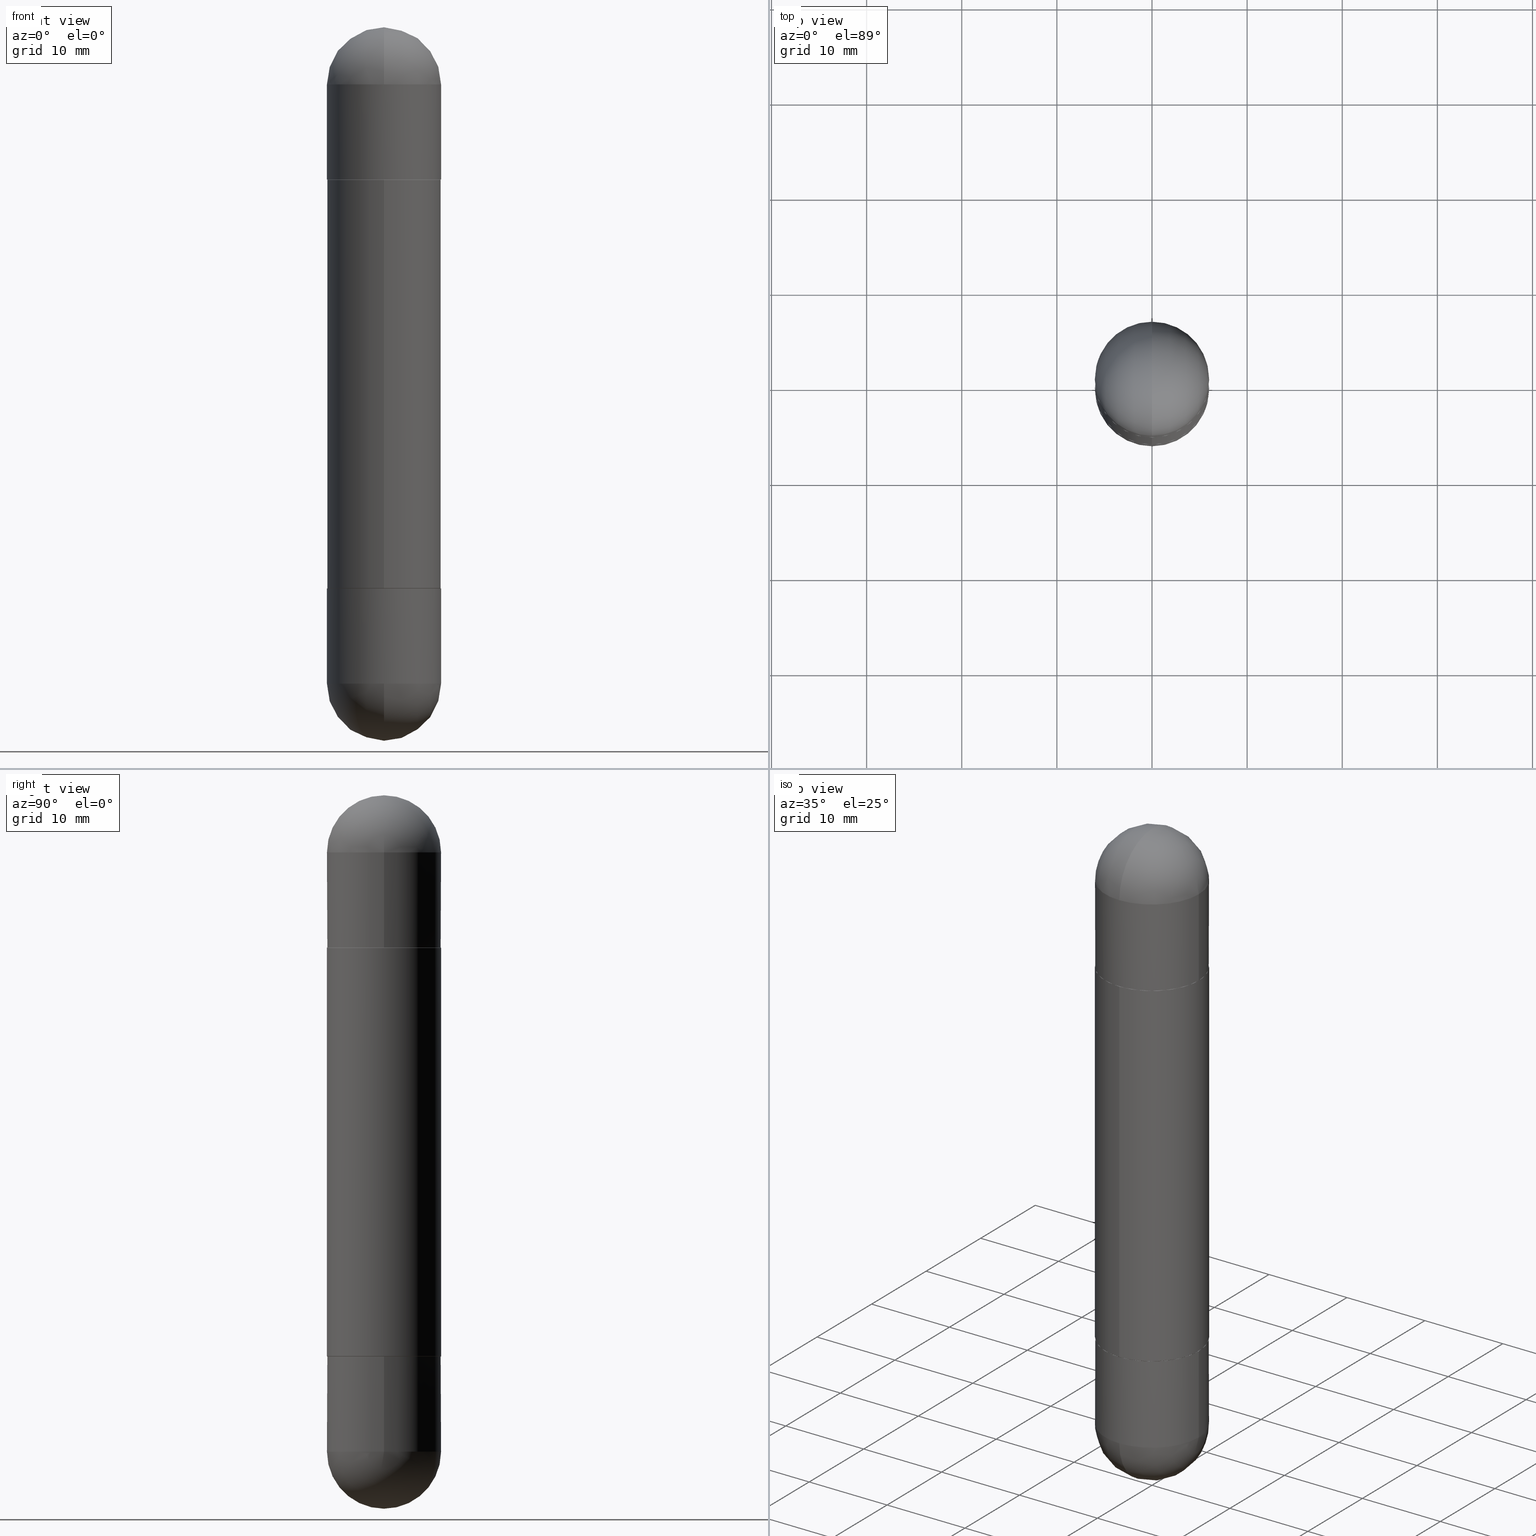
[diagram: canonical four-view strip — front | top / right | iso, engineering-drawing reading convention]
A machine part, canonical four-view strip (front | top / right | iso — engineering-drawing reading convention). The complete STEP part file that produces these views, byte-faithful:
ISO-10303-21;
HEADER;
FILE_DESCRIPTION (( 'STEP AP203' ),
    '1' );
FILE_NAME ('49088.STEP',
    '2024-03-01T12:51:57',
    ( '' ),
    ( '' ),
    'SwSTEP 2.0',
    'SolidWorks 2023',
    '' );
FILE_SCHEMA (( 'CONFIG_CONTROL_DESIGN' ));
ENDSEC;

DATA;
#1 = CIRCLE ( 'NONE', #321, 0.2361999999999999933 ) ;
#2 = CYLINDRICAL_SURFACE ( 'NONE', #669, 0.2362000000000001598 ) ;
#3 = AXIS2_PLACEMENT_3D ( 'NONE', #298, #245, #114 ) ;
#4 = EDGE_CURVE ( 'NONE', #277, #338, #294, .T. ) ;
#5 = DIRECTION ( 'NONE',  ( -2.445468806185136877E-29, 3.491481338843145188E-15, -1.000000000000000000 ) ) ;
#6 = ORIENTED_EDGE ( 'NONE', *, *, #646, .T. ) ;
#7 = CYLINDRICAL_SURFACE ( 'NONE', #602, 0.2361999999999999933 ) ;
#8 = DIRECTION ( 'NONE',  ( -1.000000000000000000, 6.982962677686265922E-15, 4.883557194083112340E-29 ) ) ;
#9 = ADVANCED_BREP_SHAPE_REPRESENTATION ( '49088', ( #317, #325, #604, #300, #579, #3 ), #652 ) ;
#10 = PERSON_AND_ORGANIZATION ( #197, #216 ) ;
#11 = CYLINDRICAL_SURFACE ( 'NONE', #145, 0.2362000000000001598 ) ;
#12 = CARTESIAN_POINT ( 'NONE',  ( 0.000000000000000000, 0.000000000000000000, -2.952799999999999869 ) ) ;
#13 = PRODUCT_RELATED_PRODUCT_CATEGORY ( 'detail', '', ( #59 ) ) ;
#14 = VECTOR ( 'NONE', #703, 39.37007874015748143 ) ;
#15 = DIRECTION ( 'NONE',  ( -1.000000000000000000, 7.105427357601001070E-15, -4.926315508542082329E-29 ) ) ;
#16 = AXIS2_PLACEMENT_3D ( 'NONE', #595, #664, #610 ) ;
#17 = ORIENTED_EDGE ( 'NONE', *, *, #635, .T. ) ;
#18 = DIRECTION ( 'NONE',  ( -6.982962677686265922E-15, -1.000000000000000000, 0.000000000000000000 ) ) ;
#19 = PLANE ( 'NONE',  #724 ) ;
#20 = LINE ( 'NONE', #278, #684 ) ;
#21 = EDGE_LOOP ( 'NONE', ( #658, #663 ) ) ;
#22 = ADVANCED_FACE ( 'NONE', ( #809 ), #772, .T. ) ;
#23 = VERTEX_POINT ( 'NONE', #396 ) ;
#24 = DIRECTION ( 'NONE',  ( -6.982962677686265922E-15, -1.000000000000000000, 3.469747663417773058E-15 ) ) ;
#25 = CARTESIAN_POINT ( 'NONE',  ( 5.680579489887452821E-29, -8.110362001998742346E-15, -0.6299000000000000155 ) ) ;
#26 = EDGE_CURVE ( 'NONE', #502, #424, #187, .T. ) ;
#27 = DIRECTION ( 'NONE',  ( -6.982962677686265922E-15, -1.000000000000000000, -3.469747663417773058E-15 ) ) ;
#28 = ORIENTED_EDGE ( 'NONE', *, *, #769, .T. ) ;
#29 = DIRECTION ( 'NONE',  ( -2.445468806185136877E-29, 3.491481338843145188E-15, 1.000000000000000000 ) ) ;
#30 = AXIS2_PLACEMENT_3D ( 'NONE', #612, #616, #789 ) ;
#31 = APPROVAL_PERSON_ORGANIZATION ( #765, #754, #331 ) ;
#32 = CARTESIAN_POINT ( 'NONE',  ( 5.678073753177936636E-29, -8.113950359584445403E-15, -2.322899999999999743 ) ) ;
#33 = CARTESIAN_POINT ( 'NONE',  ( 5.678073753177936636E-29, -8.113950359584445403E-15, -2.322899999999999743 ) ) ;
#34 = ORIENTED_EDGE ( 'NONE', *, *, #4, .T. ) ;
#35 = PLANE ( 'NONE',  #293 ) ;
#36 = EDGE_LOOP ( 'NONE', ( #810, #58 ) ) ;
#37 = SPHERICAL_SURFACE ( 'NONE', #226, 0.2362000000000002709 ) ;
#38 = EDGE_CURVE ( 'NONE', #273, #365, #706, .T. ) ;
#39 = FACE_OUTER_BOUND ( 'NONE', #778, .T. ) ;
#40 = CARTESIAN_POINT ( 'NONE',  ( 6.312240780968655053E-29, -9.959140573241337406E-15, -0.2362000000000000766 ) ) ;
#41 = CLOSED_SHELL ( 'NONE', ( #98, #555, #749, #717, #375, #589, #359, #308 ) ) ;
#42 = VECTOR ( 'NONE', #623, 39.37007874015748143 ) ;
#43 = CC_DESIGN_APPROVAL ( #754, ( #63 ) ) ;
#44 = EDGE_LOOP ( 'NONE', ( #540, #181, #342, #71, #452 ) ) ;
#45 = VERTEX_POINT ( 'NONE', #324 ) ;
#46 =( NAMED_UNIT ( * ) PLANE_ANGLE_UNIT ( ) SI_UNIT ( $, .RADIAN. ) );
#47 = DIRECTION ( 'NONE',  ( 1.000000000000000000, -6.982962677686265133E-15, 0.000000000000000000 ) ) ;
#48 = VERTEX_POINT ( 'NONE', #455 ) ;
#49 = VERTEX_POINT ( 'NONE', #136 ) ;
#50 = CARTESIAN_POINT ( 'NONE',  ( 6.312240780968655053E-29, -9.959140573241337406E-15, -0.2362000000000000766 ) ) ;
#51 = EDGE_CURVE ( 'NONE', #541, #225, #491, .T. ) ;
#52 = CARTESIAN_POINT ( 'NONE',  ( 1.620449627073636656E-15, 0.2362000000000001598, -2.952799999999998537 ) ) ;
#53 = ORIENTED_EDGE ( 'NONE', *, *, #771, .T. ) ;
#54 = ORIENTED_EDGE ( 'NONE', *, *, #383, .F. ) ;
#55 = ORIENTED_EDGE ( 'NONE', *, *, #113, .F. ) ;
#56 = DIRECTION ( 'NONE',  ( -6.982962677686265133E-15, -1.000000000000000000, -3.484499991918703113E-15 ) ) ;
#57 = CARTESIAN_POINT ( 'NONE',  ( -1.642392821791752924E-15, -0.2352000000000081248, -2.322899999999998855 ) ) ;
#58 = ORIENTED_EDGE ( 'NONE', *, *, #646, .F. ) ;
#59 = PRODUCT ( '49088', '49088', '', ( #556 ) ) ;
#60 = AXIS2_PLACEMENT_3D ( 'NONE', #792, #786, #156 ) ;
#61 = ORIENTED_EDGE ( 'NONE', *, *, #229, .T. ) ;
#62 = AXIS2_PLACEMENT_3D ( 'NONE', #355, #276, #791 ) ;
#63 = SECURITY_CLASSIFICATION ( '', '', #516 ) ;
#64 = PERSON_AND_ORGANIZATION ( #197, #216 ) ;
#65 = FACE_OUTER_BOUND ( 'NONE', #614, .T. ) ;
#66 = ORIENTED_EDGE ( 'NONE', *, *, #447, .F. ) ;
#67 = DIRECTION ( 'NONE',  ( -2.444390095646794193E-29, 3.493026113730442947E-15, -1.000000000000000000 ) ) ;
#68 = EDGE_CURVE ( 'NONE', #365, #690, #389, .T. ) ;
#69 = EDGE_CURVE ( 'NONE', #49, #23, #448, .T. ) ;
#70 = DIRECTION ( 'NONE',  ( -2.444390095646794193E-29, 3.493026113730442947E-15, -1.000000000000000000 ) ) ;
#71 = ORIENTED_EDGE ( 'NONE', *, *, #410, .F. ) ;
#72 = CARTESIAN_POINT ( 'NONE',  ( 5.675629363082290113E-29, -8.110457333470714388E-15, -0.6309000000000001274 ) ) ;
#73 = VECTOR ( 'NONE', #5, 39.37007874015748143 ) ;
#74 = CALENDAR_DATE ( 2024, 1, 3 ) ;
#75 = CIRCLE ( 'NONE', #88, 0.2361999999999999933 ) ;
#76 = CARTESIAN_POINT ( 'NONE',  ( 6.643360558882540179E-29, -9.484958205101285532E-15, -2.716599999999999238 ) ) ;
#77 = AXIS2_PLACEMENT_3D ( 'NONE', #539, #464, #335 ) ;
#78 = DIRECTION ( 'NONE',  ( -2.445468806185136597E-29, 3.491481338843145583E-15, -1.000000000000000000 ) ) ;
#79 = APPROVAL_DATE_TIME ( #133, #655 ) ;
#80 = CARTESIAN_POINT ( 'NONE',  ( 1.617019378074807352E-15, 0.2351999999999918600, -0.6298999999999992383 ) ) ;
#81 = DIRECTION ( 'NONE',  ( 2.444390095646794193E-29, -3.493026113730442947E-15, 1.000000000000000000 ) ) ;
#82 = PERSON_AND_ORGANIZATION_ROLE ( 'creator' ) ;
#83 = FACE_OUTER_BOUND ( 'NONE', #212, .T. ) ;
#84 = CARTESIAN_POINT ( 'NONE',  ( -1.678301941865292496E-15, -0.2362000000000098743, -2.716599999999997905 ) ) ;
#85 = AXIS2_PLACEMENT_3D ( 'NONE', #648, #81, #776 ) ;
#86 = CARTESIAN_POINT ( 'NONE',  ( 5.675629363082290113E-29, -8.110457333470714388E-15, -0.6309000000000001274 ) ) ;
#87 = EDGE_CURVE ( 'NONE', #682, #486, #362, .T. ) ;
#88 = AXIS2_PLACEMENT_3D ( 'NONE', #721, #346, #288 ) ;
#89 = APPROVAL_PERSON_ORGANIZATION ( #250, #691, #309 ) ;
#90 = CARTESIAN_POINT ( 'NONE',  ( 1.620449627073673141E-15, 0.2361999999999921385, -2.321900000000000297 ) ) ;
#91 = ORIENTED_EDGE ( 'NONE', *, *, #447, .T. ) ;
#92 = CARTESIAN_POINT ( 'NONE',  ( 1.613589129075920856E-15, 0.2351999999999918600, -0.6298999999999992383 ) ) ;
#93 = ORIENTED_EDGE ( 'NONE', *, *, #495, .F. ) ;
#94 = CARTESIAN_POINT ( 'NONE',  ( 1.649375784469552732E-15, 0.2361999999999918609, -2.322900000000000631 ) ) ;
#95 = EDGE_CURVE ( 'NONE', #513, #45, #544, .T. ) ;
#96 = CARTESIAN_POINT ( 'NONE',  ( 6.643360558882540179E-29, -9.484958205101285532E-15, -0.2362000000000006039 ) ) ;
#97 = SPHERICAL_SURFACE ( 'NONE', #492, 0.2362000000000002709 ) ;
#98 = ADVANCED_FACE ( 'NONE', ( #401 ), #571, .T. ) ;
#99 = CARTESIAN_POINT ( 'NONE',  ( -1.642392821791752924E-15, -0.2352000000000081248, -0.6299000000000007926 ) ) ;
#100 = AXIS2_PLACEMENT_3D ( 'NONE', #183, #303, #568 ) ;
#101 = ORIENTED_EDGE ( 'NONE', *, *, #398, .T. ) ;
#102 = FACE_OUTER_BOUND ( 'NONE', #521, .T. ) ;
#103 = FACE_OUTER_BOUND ( 'NONE', #112, .T. ) ;
#104 = CARTESIAN_POINT ( 'NONE',  ( 1.649375784469561606E-15, 0.2361999999999903899, -2.716600000000000126 ) ) ;
#105 = DIRECTION ( 'NONE',  ( -6.982962677686265133E-15, -1.000000000000000000, -3.484499991918703113E-15 ) ) ;
#106 = VERTEX_POINT ( 'NONE', #208 ) ;
#107 = AXIS2_PLACEMENT_3D ( 'NONE', #238, #501, #105 ) ;
#108 = AXIS2_PLACEMENT_3D ( 'NONE', #50, #482, #740 ) ;
#109 =( CONVERSION_BASED_UNIT ( 'INCH', #431 ) LENGTH_UNIT ( ) NAMED_UNIT ( #613 ) );
#110 = ORIENTED_EDGE ( 'NONE', *, *, #4, .F. ) ;
#111 = DIRECTION ( 'NONE',  ( -2.445468806185136597E-29, 3.491481338843145583E-15, 1.000000000000000000 ) ) ;
#112 = EDGE_LOOP ( 'NONE', ( #248, #241, #433, #527 ) ) ;
#113 = EDGE_CURVE ( 'NONE', #682, #45, #577, .T. ) ;
#114 = DIRECTION ( 'NONE',  ( 1.000000000000000000, 0.000000000000000000, 0.000000000000000000 ) ) ;
#115 = VERTEX_POINT ( 'NONE', #84 ) ;
#116 = CARTESIAN_POINT ( 'NONE',  ( -1.649375784469497117E-15, -0.2362000000000001598, -2.952800000000000757 ) ) ;
#117 = ORIENTED_EDGE ( 'NONE', *, *, #817, .T. ) ;
#118 = ORIENTED_EDGE ( 'NONE', *, *, #419, .F. ) ;
#119 = EDGE_CURVE ( 'NONE', #645, #48, #668, .T. ) ;
#120 =( LENGTH_UNIT ( ) NAMED_UNIT ( * ) SI_UNIT ( $, .METRE. ) );
#121 = DIRECTION ( 'NONE',  ( -2.444390095646793913E-29, 3.493026113730442947E-15, 1.000000000000000000 ) ) ;
#122 = CIRCLE ( 'NONE', #707, 0.2361999999999999933 ) ;
#123 = CIRCLE ( 'NONE', #634, 0.2351999999999999924 ) ;
#124 = CARTESIAN_POINT ( 'NONE',  ( 6.312240780968655053E-29, -9.959140573241337406E-15, -2.716599999999999682 ) ) ;
#125 = EDGE_CURVE ( 'NONE', #258, #260, #505, .T. ) ;
#126 = APPROVAL_DATE_TIME ( #700, #754 ) ;
#127 = CARTESIAN_POINT ( 'NONE',  ( 0.000000000000000000, 0.000000000000000000, 0.000000000000000000 ) ) ;
#128 = CARTESIAN_POINT ( 'NONE',  ( 5.678073753177936636E-29, -8.113950359584445403E-15, -2.322899999999999743 ) ) ;
#129 = CARTESIAN_POINT ( 'NONE',  ( 0.000000000000000000, 0.000000000000000000, -2.952799999999999869 ) ) ;
#130 = DIRECTION ( 'NONE',  ( -2.444390095646794193E-29, 3.493026113730442947E-15, -1.000000000000000000 ) ) ;
#131 = AXIS2_PLACEMENT_3D ( 'NONE', #388, #259, #194 ) ;
#132 = AXIS2_PLACEMENT_3D ( 'NONE', #127, #711, #142 ) ;
#133 = DATE_AND_TIME ( #74, #405 ) ;
#134 = AXIS2_PLACEMENT_3D ( 'NONE', #363, #121, #380 ) ;
#135 = DIRECTION ( 'NONE',  ( -6.982962677686265922E-15, -1.000000000000000000, -4.626330217890366181E-15 ) ) ;
#136 = CARTESIAN_POINT ( 'NONE',  ( 0.2361999999999999933, -1.044703588801951204E-14, -0.2362000000000006039 ) ) ;
#137 = ORIENTED_EDGE ( 'NONE', *, *, #38, .F. ) ;
#138 = DIRECTION ( 'NONE',  ( 1.000000000000000000, -6.982962677686265133E-15, 0.000000000000000000 ) ) ;
#139 = EDGE_LOOP ( 'NONE', ( #54, #161, #371, #148, #522 ) ) ;
#140 = DIRECTION ( 'NONE',  ( -6.982962677686265922E-15, -1.000000000000000000, -4.626330217890366181E-15 ) ) ;
#141 = ADVANCED_FACE ( 'NONE', ( #319 ), #515, .T. ) ;
#142 = DIRECTION ( 'NONE',  ( 1.000000000000000000, -6.982962677686266711E-15, 4.876176775795936353E-29 ) ) ;
#143 = DIRECTION ( 'NONE',  ( 1.000000000000000000, -6.982962677686265133E-15, 0.000000000000000000 ) ) ;
#144 = DIRECTION ( 'NONE',  ( 1.000000000000000000, -6.982962677686265922E-15, -4.883557194083112901E-29 ) ) ;
#145 = AXIS2_PLACEMENT_3D ( 'NONE', #818, #504, #570 ) ;
#146 = EDGE_CURVE ( 'NONE', #273, #645, #122, .T. ) ;
#147 = CIRCLE ( 'NONE', #547, 0.2361999999999999933 ) ;
#148 = ORIENTED_EDGE ( 'NONE', *, *, #69, .T. ) ;
#149 = FACE_OUTER_BOUND ( 'NONE', #21, .T. ) ;
#150 = DIRECTION ( 'NONE',  ( 2.445468806185136597E-29, -3.491481338843145583E-15, 1.000000000000000000 ) ) ;
#151 = VERTEX_POINT ( 'NONE', #90 ) ;
#152 = FACE_OUTER_BOUND ( 'NONE', #490, .T. ) ;
#153 = VERTEX_POINT ( 'NONE', #337 ) ;
#154 = CC_DESIGN_DATE_AND_TIME_ASSIGNMENT ( #182, #435, ( #368 ) ) ;
#155 = DIRECTION ( 'NONE',  ( 4.851104656541460468E-15, 0.7071067811866224018, -0.7071067811864726327 ) ) ;
#156 = DIRECTION ( 'NONE',  ( 1.000000000000000000, -6.982962677686265133E-15, 0.000000000000000000 ) ) ;
#157 = PLANE ( 'NONE',  #442 ) ;
#158 = DIRECTION ( 'NONE',  ( 1.000000000000000000, -6.982962677686265922E-15, -4.883557194083112901E-29 ) ) ;
#159 = CIRCLE ( 'NONE', #364, 0.2361999999999999933 ) ;
#160 = CC_DESIGN_DATE_AND_TIME_ASSIGNMENT ( #437, #326, ( #63 ) ) ;
#161 = ORIENTED_EDGE ( 'NONE', *, *, #742, .F. ) ;
#162 = EDGE_CURVE ( 'NONE', #106, #367, #20, .T. ) ;
#163 = DIRECTION ( 'NONE',  ( 6.982962677686265922E-15, 1.000000000000000000, 3.469747663417773058E-15 ) ) ;
#164 = CARTESIAN_POINT ( 'NONE',  ( 6.899960026864792464E-29, -1.076936538677815810E-14, -2.952799999999999869 ) ) ;
#165 = ADVANCED_FACE ( 'NONE', ( #638 ), #573, .F. ) ;
#166 = SPHERICAL_SURFACE ( 'NONE', #366, 0.2362000000000002709 ) ;
#167 = DIRECTION ( 'NONE',  ( -6.982962677686265133E-15, -1.000000000000000000, -3.484499991918703113E-15 ) ) ;
#168 = ORIENTED_EDGE ( 'NONE', *, *, #95, .F. ) ;
#169 = VERTEX_POINT ( 'NONE', #453 ) ;
#170 = ORIENTED_EDGE ( 'NONE', *, *, #449, .T. ) ;
#171 = DIRECTION ( 'NONE',  ( 1.000000000000000000, -6.982962677686265922E-15, 4.883557194083112340E-29 ) ) ;
#172 = ADVANCED_FACE ( 'NONE', ( #642 ), #726, .T. ) ;
#173 = ORIENTED_EDGE ( 'NONE', *, *, #189, .F. ) ;
#174 = AXIS2_PLACEMENT_3D ( 'NONE', #488, #558, #296 ) ;
#175 = ORIENTED_EDGE ( 'NONE', *, *, #209, .F. ) ;
#176 = CIRCLE ( 'NONE', #775, 0.2351999999999999924 ) ;
#177 = DIRECTION ( 'NONE',  ( 1.000000000000000000, -6.982962677686265922E-15, -4.883557194083112901E-29 ) ) ;
#178 = ORIENTED_EDGE ( 'NONE', *, *, #410, .T. ) ;
#179 = LINE ( 'NONE', #432, #750 ) ;
#180 = ADVANCED_FACE ( 'NONE', ( #149 ), #480, .F. ) ;
#181 = ORIENTED_EDGE ( 'NONE', *, *, #209, .T. ) ;
#182 = DATE_AND_TIME ( #546, #764 ) ;
#183 = CARTESIAN_POINT ( 'NONE',  ( 0.000000000000000000, 0.000000000000000000, -2.952799999999999869 ) ) ;
#184 = APPROVAL_STATUS ( 'not_yet_approved' ) ;
#185 = FACE_OUTER_BOUND ( 'NONE', #36, .T. ) ;
#186 = EDGE_CURVE ( 'NONE', #673, #23, #561, .T. ) ;
#187 = CIRCLE ( 'NONE', #320, 0.2362000000000002709 ) ;
#188 = AXIS2_PLACEMENT_3D ( 'NONE', #280, #218, #755 ) ;
#189 = EDGE_CURVE ( 'NONE', #629, #560, #783, .T. ) ;
#190 = COORDINATED_UNIVERSAL_TIME_OFFSET ( 5, 0, .BEHIND. ) ;
#191 = FACE_OUTER_BOUND ( 'NONE', #403, .T. ) ;
#192 = CARTESIAN_POINT ( 'NONE',  ( 0.000000000000000000, 0.000000000000000000, -2.952799999999999869 ) ) ;
#193 = FACE_OUTER_BOUND ( 'NONE', #739, .T. ) ;
#194 = DIRECTION ( 'NONE',  ( -1.000000000000000000, 0.000000000000000000, 0.000000000000000000 ) ) ;
#195 = EDGE_CURVE ( 'NONE', #151, #338, #748, .T. ) ;
#196 = ORIENTED_EDGE ( 'NONE', *, *, #564, .T. ) ;
#197 = PERSON ( 'UNSPECIFIED', 'UNSPECIFIED', 'UNSPECIFIED', ('UNSPECIFIED'), ('UNSPECIFIED'), ('UNSPECIFIED') ) ;
#198 = CARTESIAN_POINT ( 'NONE',  ( 1.620449627073694243E-15, 0.2361999999999921385, -0.6308999999999992392 ) ) ;
#199 = CARTESIAN_POINT ( 'NONE',  ( 5.680579489887452821E-29, -8.110362001998742346E-15, -0.6299000000000000155 ) ) ;
#200 = AXIS2_PLACEMENT_3D ( 'NONE', #458, #264, #640 ) ;
#201 = AXIS2_PLACEMENT_3D ( 'NONE', #671, #406, #420 ) ;
#202 = FACE_OUTER_BOUND ( 'NONE', #230, .T. ) ;
#203 = DIRECTION ( 'NONE',  ( 2.445468806185136597E-29, -3.491481338843145583E-15, 1.000000000000000000 ) ) ;
#204 = ADVANCED_FACE ( 'NONE', ( #341 ), #97, .T. ) ;
#205 = CARTESIAN_POINT ( 'NONE',  ( -1.649375784469497117E-15, -0.2362000000000001598, -2.952800000000000757 ) ) ;
#206 = EDGE_LOOP ( 'NONE', ( #628, #118 ) ) ;
#207 = EDGE_CURVE ( 'NONE', #513, #151, #474, .T. ) ;
#208 = CARTESIAN_POINT ( 'NONE',  ( -1.642392821791752924E-15, -0.2352000000000081248, -0.6299000000000007926 ) ) ;
#209 = EDGE_CURVE ( 'NONE', #260, #541, #542, .T. ) ;
#210 = CARTESIAN_POINT ( 'NONE',  ( 5.678073753177936636E-29, -8.113950359584445403E-15, -0.6299000000000000155 ) ) ;
#211 = DIRECTION ( 'NONE',  ( 6.982962677686265922E-15, 1.000000000000000000, -4.626330217890364603E-15 ) ) ;
#212 = EDGE_LOOP ( 'NONE', ( #306, #719, #800, #275, #297 ) ) ;
#213 = AXIS2_PLACEMENT_3D ( 'NONE', #581, #203, #461 ) ;
#214 = CARTESIAN_POINT ( 'NONE',  ( 1.649375784469552732E-15, 0.2361999999999918609, -0.6298999999999992383 ) ) ;
#215 = VECTOR ( 'NONE', #436, 39.37007874015748143 ) ;
#216 = ORGANIZATION ( 'UNSPECIFIED', 'UNSPECIFIED', '' ) ;
#217 = VERTEX_POINT ( 'NONE', #164 ) ;
#218 = DIRECTION ( 'NONE',  ( -0.000000000000000000, -0.000000000000000000, -1.000000000000000000 ) ) ;
#219 = SPHERICAL_SURFACE ( 'NONE', #62, 0.2362000000000002709 ) ;
#220 = CARTESIAN_POINT ( 'NONE',  ( 0.000000000000000000, 0.000000000000000000, -2.952799999999999869 ) ) ;
#221 = EDGE_LOOP ( 'NONE', ( #559, #28, #745, #110 ) ) ;
#222 = DIRECTION ( 'NONE',  ( -1.000000000000000000, 6.982962677686265922E-15, 4.876176775795935793E-29 ) ) ;
#223 = DIRECTION ( 'NONE',  ( -6.982962677686265133E-15, -1.000000000000000000, 3.484499991918703113E-15 ) ) ;
#224 = EDGE_CURVE ( 'NONE', #594, #169, #587, .T. ) ;
#225 = VERTEX_POINT ( 'NONE', #597 ) ;
#226 = AXIS2_PLACEMENT_3D ( 'NONE', #662, #286, #529 ) ;
#227 = CARTESIAN_POINT ( 'NONE',  ( 1.613589129075920856E-15, 0.2351999999999918600, -0.6298999999999992383 ) ) ;
#228 = AXIS2_PLACEMENT_3D ( 'NONE', #744, #372, #694 ) ;
#229 = EDGE_CURVE ( 'NONE', #567, #273, #414, .T. ) ;
#230 = EDGE_LOOP ( 'NONE', ( #481, #563, #91, #509 ) ) ;
#231 = CARTESIAN_POINT ( 'NONE',  ( 5.678073753177936636E-29, -8.113950359584445403E-15, -0.6299000000000000155 ) ) ;
#232 = FACE_OUTER_BOUND ( 'NONE', #44, .T. ) ;
#233 = EDGE_CURVE ( 'NONE', #236, #567, #630, .T. ) ;
#234 = FACE_OUTER_BOUND ( 'NONE', #549, .T. ) ;
#235 = CALENDAR_DATE ( 2024, 1, 3 ) ;
#236 = VERTEX_POINT ( 'NONE', #284 ) ;
#237 = ADVANCED_FACE ( 'NONE', ( #152 ), #676, .T. ) ;
#238 = CARTESIAN_POINT ( 'NONE',  ( 5.678073753177936636E-29, -8.113950359584445403E-15, -0.6299000000000000155 ) ) ;
#239 = AXIS2_PLACEMENT_3D ( 'NONE', #768, #394, #518 ) ;
#240 = CIRCLE ( 'NONE', #603, 0.2361999999999999933 ) ;
#241 = ORIENTED_EDGE ( 'NONE', *, *, #473, .T. ) ;
#242 = CC_DESIGN_SECURITY_CLASSIFICATION ( #63, ( #391 ) ) ;
#243 = CIRCLE ( 'NONE', #751, 0.2351999999999999924 ) ;
#244 = ORIENTED_EDGE ( 'NONE', *, *, #769, .F. ) ;
#245 = DIRECTION ( 'NONE',  ( 0.000000000000000000, 0.000000000000000000, 1.000000000000000000 ) ) ;
#246 = ORIENTED_EDGE ( 'NONE', *, *, #449, .F. ) ;
#247 = CARTESIAN_POINT ( 'NONE',  ( 6.643360558882540179E-29, -9.484958205101285532E-15, -2.716599999999999238 ) ) ;
#248 = ORIENTED_EDGE ( 'NONE', *, *, #233, .F. ) ;
#249 = ADVANCED_FACE ( 'NONE', ( #103 ), #37, .T. ) ;
#250 = PERSON_AND_ORGANIZATION ( #197, #216 ) ;
#251 = LINE ( 'NONE', #116, #42 ) ;
#252 = EDGE_CURVE ( 'NONE', #277, #153, #440, .T. ) ;
#253 = PERSON_AND_ORGANIZATION_ROLE ( 'design_supplier' ) ;
#254 = CARTESIAN_POINT ( 'NONE',  ( -0.2361999999999999933, -7.177210476476378861E-15, -0.2362000000000006039 ) ) ;
#255 = CIRCLE ( 'NONE', #228, 0.2361999999999999933 ) ;
#256 = AXIS2_PLACEMENT_3D ( 'NONE', #781, #144, #163 ) ;
#257 = FACE_OUTER_BOUND ( 'NONE', #347, .T. ) ;
#258 = VERTEX_POINT ( 'NONE', #104 ) ;
#259 = DIRECTION ( 'NONE',  ( 0.000000000000000000, 0.000000000000000000, 1.000000000000000000 ) ) ;
#260 = VERTEX_POINT ( 'NONE', #476 ) ;
#261 = LINE ( 'NONE', #327, #709 ) ;
#262 = ORIENTED_EDGE ( 'NONE', *, *, #146, .T. ) ;
#263 = CARTESIAN_POINT ( 'NONE',  ( -1.642392821791752924E-15, -0.2352000000000081248, -0.6299000000000007926 ) ) ;
#264 = DIRECTION ( 'NONE',  ( -1.000000000000000000, 6.982962677686265922E-15, 4.883557194083112340E-29 ) ) ;
#265 = EDGE_CURVE ( 'NONE', #460, #582, #75, .T. ) ;
#266 = DIRECTION ( 'NONE',  ( 1.000000000000000000, -6.982962677686266711E-15, 0.000000000000000000 ) ) ;
#267 = AXIS2_PLACEMENT_3D ( 'NONE', #40, #422, #413 ) ;
#268 = CIRCLE ( 'NONE', #16, 0.2361999999999999933 ) ;
#269 = COORDINATED_UNIVERSAL_TIME_OFFSET ( 5, 0, .BEHIND. ) ;
#270 = EDGE_CURVE ( 'NONE', #169, #594, #305, .T. ) ;
#271 = AXIS2_PLACEMENT_3D ( 'NONE', #606, #591, #720 ) ;
#272 = DIRECTION ( 'NONE',  ( 1.000000000000000000, -6.982962677686265133E-15, 0.000000000000000000 ) ) ;
#273 = VERTEX_POINT ( 'NONE', #552 ) ;
#274 = DIRECTION ( 'NONE',  ( -2.444390095646794193E-29, 3.493026113730442947E-15, 1.000000000000000000 ) ) ;
#275 = ORIENTED_EDGE ( 'NONE', *, *, #69, .F. ) ;
#276 = DIRECTION ( 'NONE',  ( -1.000000000000000000, 6.982962677686265922E-15, -4.883557194083112901E-29 ) ) ;
#277 = VERTEX_POINT ( 'NONE', #57 ) ;
#278 = CARTESIAN_POINT ( 'NONE',  ( -1.642392821791752924E-15, -0.2352000000000081248, -0.6299000000000007926 ) ) ;
#279 = DIRECTION ( 'NONE',  ( -6.982962677686265922E-15, -1.000000000000000000, -3.493026113730442947E-15 ) ) ;
#280 = CARTESIAN_POINT ( 'NONE',  ( 3.608897537212926545E-29, -5.157103754311625220E-15, -1.476399999999999935 ) ) ;
#281 = AXIS2_PLACEMENT_3D ( 'NONE', #220, #465, #353 ) ;
#282 = DIRECTION ( 'NONE',  ( -2.444390095646794193E-29, 3.493026113730442947E-15, 1.000000000000000000 ) ) ;
#283 = LOCAL_TIME ( 7, 51, 57.00000000000000000, #190 ) ;
#284 = CARTESIAN_POINT ( 'NONE',  ( 6.899960026864792464E-29, -1.076936538677815810E-14, 2.048885995248197414E-16 ) ) ;
#285 = FACE_OUTER_BOUND ( 'NONE', #803, .T. ) ;
#286 = DIRECTION ( 'NONE',  ( 1.000000000000000000, -6.982962677686265922E-15, -4.883557194083112901E-29 ) ) ;
#287 = FACE_OUTER_BOUND ( 'NONE', #554, .T. ) ;
#288 = DIRECTION ( 'NONE',  ( 1.000000000000000000, -6.982962677686265133E-15, 0.000000000000000000 ) ) ;
#289 = APPROVAL_ROLE ( '' ) ;
#290 = CLOSED_SHELL ( 'NONE', ( #438, #625, #237, #180, #593 ) ) ;
#291 = DIRECTION ( 'NONE',  ( -2.444390095646794193E-29, 3.493026113730442947E-15, 1.000000000000000000 ) ) ;
#292 = CIRCLE ( 'NONE', #761, 0.2361999999999999933 ) ;
#293 = AXIS2_PLACEMENT_3D ( 'NONE', #214, #536, #222 ) ;
#294 = LINE ( 'NONE', #674, #427 ) ;
#295 = EDGE_CURVE ( 'NONE', #225, #541, #255, .T. ) ;
#296 = DIRECTION ( 'NONE',  ( -6.982962677686265133E-15, -1.000000000000000000, 3.484499991918703113E-15 ) ) ;
#297 = ORIENTED_EDGE ( 'NONE', *, *, #445, .F. ) ;
#298 = CARTESIAN_POINT ( 'NONE',  ( 0.000000000000000000, 0.000000000000000000, 0.000000000000000000 ) ) ;
#299 = DIRECTION ( 'NONE',  ( 1.000000000000000000, -6.982962677686265133E-15, 0.000000000000000000 ) ) ;
#300 = MANIFOLD_SOLID_BREP ( 'Mirror4[4]', #334 ) ;
#301 = EDGE_LOOP ( 'NONE', ( #715, #683, #400, #101 ) ) ;
#302 = ORIENTED_EDGE ( 'NONE', *, *, #695, .F. ) ;
#303 = DIRECTION ( 'NONE',  ( -2.445468806185136597E-29, 3.491481338843145583E-15, -1.000000000000000000 ) ) ;
#304 = AXIS2_PLACEMENT_3D ( 'NONE', #25, #608, #408 ) ;
#305 = CIRCLE ( 'NONE', #188, 0.2362000000000001598 ) ;
#306 = ORIENTED_EDGE ( 'NONE', *, *, #265, .F. ) ;
#307 = AXIS2_PLACEMENT_3D ( 'NONE', #340, #534, #24 ) ;
#308 = ADVANCED_FACE ( 'NONE', ( #185 ), #548, .F. ) ;
#309 = APPROVAL_ROLE ( '' ) ;
#310 = CARTESIAN_POINT ( 'NONE',  ( 5.680579489887452821E-29, -8.110362001998742346E-15, -0.6299000000000000155 ) ) ;
#311 = EDGE_CURVE ( 'NONE', #486, #682, #651, .T. ) ;
#312 = ORIENTED_EDGE ( 'NONE', *, *, #113, .T. ) ;
#313 = CALENDAR_DATE ( 2024, 1, 3 ) ;
#314 = CYLINDRICAL_SURFACE ( 'NONE', #132, 0.2361999999999999933 ) ;
#315 = ORIENTED_EDGE ( 'NONE', *, *, #695, .T. ) ;
#316 = ORIENTED_EDGE ( 'NONE', *, *, #397, .F. ) ;
#317 = MANIFOLD_SOLID_BREP ( 'Body-Move/Copy2[1]', #290 ) ;
#318 = CARTESIAN_POINT ( 'NONE',  ( -1.620449627073571772E-15, -0.2362000000000098743, -0.2362000000000014366 ) ) ;
#319 = FACE_OUTER_BOUND ( 'NONE', #345, .T. ) ;
#320 = AXIS2_PLACEMENT_3D ( 'NONE', #386, #8, #18 ) ;
#321 = AXIS2_PLACEMENT_3D ( 'NONE', #76, #708, #272 ) ;
#322 = CIRCLE ( 'NONE', #108, 0.2362000000000002709 ) ;
#323 = DIRECTION ( 'NONE',  ( -2.444390095646793913E-29, 3.493026113730442947E-15, -1.000000000000000000 ) ) ;
#324 = CARTESIAN_POINT ( 'NONE',  ( -1.649375784469441108E-15, -0.2362000000000084032, -0.6309000000000009045 ) ) ;
#325 = MANIFOLD_SOLID_BREP ( 'Mirror4[1]', #796 ) ;
#326 = DATE_TIME_ROLE ( 'classification_date' ) ;
#327 = CARTESIAN_POINT ( 'NONE',  ( -0.2361999999999999933, 1.620449627073635670E-15, -2.952799999999999869 ) ) ;
#328 = UNCERTAINTY_MEASURE_WITH_UNIT (LENGTH_MEASURE( 1.000000000000000082E-05 ), #109, 'distance_accuracy_value', 'NONE');
#329 = DIRECTION ( 'NONE',  ( -6.982962677686265922E-15, -1.000000000000000000, -3.469747663417773058E-15 ) ) ;
#330 = ORIENTED_EDGE ( 'NONE', *, *, #654, .F. ) ;
#331 = APPROVAL_ROLE ( '' ) ;
#332 = CARTESIAN_POINT ( 'NONE',  ( 6.643360558882540179E-29, -9.484958205101285532E-15, -0.2362000000000006039 ) ) ;
#333 = DIRECTION ( 'NONE',  ( -2.445468806185136597E-29, 3.491481338843145583E-15, 1.000000000000000000 ) ) ;
#334 = CLOSED_SHELL ( 'NONE', ( #172, #680, #249, #762, #361 ) ) ;
#335 = DIRECTION ( 'NONE',  ( -6.982962677686265133E-15, -1.000000000000000000, -3.484499991918703113E-15 ) ) ;
#336 = ORIENTED_EDGE ( 'NONE', *, *, #357, .F. ) ;
#337 = CARTESIAN_POINT ( 'NONE',  ( 1.674749228186613674E-15, 0.2351999999999918600, -2.322900000000000631 ) ) ;
#338 = VERTEX_POINT ( 'NONE', #620 ) ;
#339 = ORIENTED_EDGE ( 'NONE', *, *, #146, .F. ) ;
#340 = CARTESIAN_POINT ( 'NONE',  ( 5.675629363082290113E-29, -8.110457333470714388E-15, -2.321899999999999409 ) ) ;
#341 = FACE_OUTER_BOUND ( 'NONE', #301, .T. ) ;
#342 = ORIENTED_EDGE ( 'NONE', *, *, #295, .F. ) ;
#343 = ADVANCED_FACE ( 'NONE', ( #234 ), #466, .T. ) ;
#344 = FACE_OUTER_BOUND ( 'NONE', #206, .T. ) ;
#345 = EDGE_LOOP ( 'NONE', ( #302, #735, #472, #66 ) ) ;
#346 = DIRECTION ( 'NONE',  ( 2.445468806185136597E-29, -3.491481338843145583E-15, 1.000000000000000000 ) ) ;
#347 = EDGE_LOOP ( 'NONE', ( #511, #688, #407, #598 ) ) ;
#348 = VECTOR ( 'NONE', #657, 39.37007874015748143 ) ;
#349 = CONICAL_SURFACE ( 'NONE', #532, 0.2351999999999999924, 0.7853981633975507526 ) ;
#350 = DIRECTION ( 'NONE',  ( 1.000000000000000000, -6.982962677686265133E-15, 0.000000000000000000 ) ) ;
#351 = VECTOR ( 'NONE', #155, 39.37007874015748143 ) ;
#352 = ORIENTED_EDGE ( 'NONE', *, *, #195, .F. ) ;
#353 = DIRECTION ( 'NONE',  ( 1.000000000000000000, -6.982962677686266711E-15, 0.000000000000000000 ) ) ;
#354 = EDGE_LOOP ( 'NONE', ( #244, #6, #34, #352 ) ) ;
#355 = CARTESIAN_POINT ( 'NONE',  ( 6.312240780968655053E-29, -9.959140573241337406E-15, -2.716599999999999682 ) ) ;
#356 = CARTESIAN_POINT ( 'NONE',  ( 6.312240780968655053E-29, -9.959140573241337406E-15, -2.716599999999999682 ) ) ;
#357 = EDGE_CURVE ( 'NONE', #412, #258, #240, .T. ) ;
#358 = DIRECTION ( 'NONE',  ( -1.000000000000000000, 6.982962677686265922E-15, -4.876176775795935793E-29 ) ) ;
#359 = ADVANCED_FACE ( 'NONE', ( #493 ), #723, .T. ) ;
#360 = ORIENTED_EDGE ( 'NONE', *, *, #643, .F. ) ;
#361 = ADVANCED_FACE ( 'NONE', ( #808 ), #499, .T. ) ;
#362 = CIRCLE ( 'NONE', #85, 0.2351999999999999924 ) ;
#363 = CARTESIAN_POINT ( 'NONE',  ( 5.678073753177936636E-29, -8.113950359584445403E-15, -2.322899999999999743 ) ) ;
#364 = AXIS2_PLACEMENT_3D ( 'NONE', #247, #111, #299 ) ;
#365 = VERTEX_POINT ( 'NONE', #699 ) ;
#366 = AXIS2_PLACEMENT_3D ( 'NONE', #815, #177, #807 ) ;
#367 = VERTEX_POINT ( 'NONE', #566 ) ;
#368 = PRODUCT_DEFINITION ( 'UNKNOWN', '', #391, #551 ) ;
#369 = CARTESIAN_POINT ( 'NONE',  ( 5.678073753177936636E-29, -8.113950359584445403E-15, -0.6299000000000000155 ) ) ;
#370 = DATE_AND_TIME ( #235, #417 ) ;
#371 = ORIENTED_EDGE ( 'NONE', *, *, #398, .F. ) ;
#372 = DIRECTION ( 'NONE',  ( -2.445468806185136597E-29, 3.491481338843145583E-15, 1.000000000000000000 ) ) ;
#373 = ORIENTED_EDGE ( 'NONE', *, *, #51, .F. ) ;
#374 = APPLICATION_CONTEXT ( 'configuration controlled 3d designs of mechanical parts and assemblies' ) ;
#375 = ADVANCED_FACE ( 'NONE', ( #65 ), #349, .T. ) ;
#376 = APPLICATION_PROTOCOL_DEFINITION ( 'international standard', 'config_control_design', 1994, #557 ) ;
#377 = DIRECTION ( 'NONE',  ( -2.444390095646794193E-29, 3.493026113730442947E-15, -1.000000000000000000 ) ) ;
#378 = AXIS2_PLACEMENT_3D ( 'NONE', #192, #78, #266 ) ;
#379 = AXIS2_PLACEMENT_3D ( 'NONE', #627, #679, #167 ) ;
#380 = DIRECTION ( 'NONE',  ( -6.982962677686265922E-15, -1.000000000000000000, 3.493026113730442947E-15 ) ) ;
#381 = ORIENTED_EDGE ( 'NONE', *, *, #265, .T. ) ;
#382 = DIRECTION ( 'NONE',  ( -4.937700262165053702E-15, -0.7071067811866175168, 0.7071067811864775177 ) ) ;
#383 = EDGE_CURVE ( 'NONE', #460, #673, #179, .T. ) ;
#384 = DIRECTION ( 'NONE',  ( 2.445468806185136597E-29, -3.491481338843145583E-15, 1.000000000000000000 ) ) ;
#385 = EDGE_CURVE ( 'NONE', #217, #258, #797, .T. ) ;
#386 = CARTESIAN_POINT ( 'NONE',  ( 6.312240780968655053E-29, -9.959140573241337406E-15, -0.2362000000000000766 ) ) ;
#387 = CYLINDRICAL_SURFACE ( 'NONE', #588, 0.2361999999999999933 ) ;
#388 = CARTESIAN_POINT ( 'NONE',  ( 0.000000000000000000, 0.000000000000000000, -1.476399999999999935 ) ) ;
#389 = CIRCLE ( 'NONE', #456, 0.2361999999999999933 ) ;
#390 = AXIS2_PLACEMENT_3D ( 'NONE', #767, #704, #135 ) ;
#391 = PRODUCT_DEFINITION_FORMATION_WITH_SPECIFIED_SOURCE ( 'ANY', '', #59, .NOT_KNOWN. ) ;
#392 = FACE_OUTER_BOUND ( 'NONE', #790, .T. ) ;
#393 = CC_DESIGN_PERSON_AND_ORGANIZATION_ASSIGNMENT ( #64, #498, ( #368 ) ) ;
#394 = DIRECTION ( 'NONE',  ( -2.445468806185136597E-29, 3.491481338843145583E-15, 1.000000000000000000 ) ) ;
#395 = LINE ( 'NONE', #205, #519 ) ;
#396 = CARTESIAN_POINT ( 'NONE',  ( 0.2361999999999999933, -9.759737786468237294E-15, -0.6299000000000000155 ) ) ;
#397 = EDGE_CURVE ( 'NONE', #260, #115, #159, .T. ) ;
#398 = EDGE_CURVE ( 'NONE', #49, #424, #292, .T. ) ;
#399 = CARTESIAN_POINT ( 'NONE',  ( 1.617019378074807352E-15, 0.2351999999999918600, -0.6298999999999992383 ) ) ;
#400 = ORIENTED_EDGE ( 'NONE', *, *, #445, .T. ) ;
#401 = FACE_OUTER_BOUND ( 'NONE', #221, .T. ) ;
#402 = AXIS2_PLACEMENT_3D ( 'NONE', #128, #274, #780 ) ;
#403 = EDGE_LOOP ( 'NONE', ( #117, #53 ) ) ;
#404 = VECTOR ( 'NONE', #67, 39.37007874015748143 ) ;
#405 = LOCAL_TIME ( 7, 51, 57.00000000000000000, #578 ) ;
#406 = DIRECTION ( 'NONE',  ( -2.444390095646794193E-29, 3.493026113730442947E-15, -1.000000000000000000 ) ) ;
#407 = ORIENTED_EDGE ( 'NONE', *, *, #421, .T. ) ;
#408 = DIRECTION ( 'NONE',  ( 1.000000000000000000, -6.982962677686265133E-15, 0.000000000000000000 ) ) ;
#409 = LINE ( 'NONE', #528, #457 ) ;
#410 = EDGE_CURVE ( 'NONE', #412, #225, #692, .T. ) ;
#411 = FACE_OUTER_BOUND ( 'NONE', #661, .T. ) ;
#412 = VERTEX_POINT ( 'NONE', #689 ) ;
#413 = DIRECTION ( 'NONE',  ( 6.860497997771530774E-15, 1.000000000000000000, 0.000000000000000000 ) ) ;
#414 = CIRCLE ( 'NONE', #60, 0.2361999999999999933 ) ;
#415 = AXIS2_PLACEMENT_3D ( 'NONE', #701, #15, #454 ) ;
#416 = DIRECTION ( 'NONE',  ( 2.438088387897960049E-29, -3.491481338843145188E-15, 1.000000000000000000 ) ) ;
#417 = LOCAL_TIME ( 7, 51, 57.00000000000000000, #631 ) ;
#418 = DIRECTION ( 'NONE',  ( -0.000000000000000000, -0.000000000000000000, -1.000000000000000000 ) ) ;
#419 = EDGE_CURVE ( 'NONE', #690, #365, #812, .T. ) ;
#420 = DIRECTION ( 'NONE',  ( -6.982962677686265133E-15, -1.000000000000000000, -3.484499991918703113E-15 ) ) ;
#421 = EDGE_CURVE ( 'NONE', #45, #338, #251, .T. ) ;
#422 = DIRECTION ( 'NONE',  ( 1.000000000000000000, -6.860497997771530774E-15, -4.840798879624142912E-29 ) ) ;
#423 = EDGE_CURVE ( 'NONE', #560, #594, #636, .T. ) ;
#424 = VERTEX_POINT ( 'NONE', #802 ) ;
#425 = CARTESIAN_POINT ( 'NONE',  ( 0.2361999999999999933, -1.649375784469496131E-15, 1.151752954443000088E-29 ) ) ;
#426 = APPROVAL_STATUS ( 'not_yet_approved' ) ;
#427 = VECTOR ( 'NONE', #382, 39.37007874015748143 ) ;
#428 = DIRECTION ( 'NONE',  ( 2.445468806185136597E-29, -3.491481338843145583E-15, 1.000000000000000000 ) ) ;
#429 = AXIS2_PLACEMENT_3D ( 'NONE', #124, #171, #633 ) ;
#430 = AXIS2_PLACEMENT_3D ( 'NONE', #725, #599, #660 ) ;
#431 = LENGTH_MEASURE_WITH_UNIT ( LENGTH_MEASURE( 0.02539999999999999897 ), #120 );
#432 = CARTESIAN_POINT ( 'NONE',  ( -0.2361999999999999933, 1.620449627073635670E-15, -2.952799999999999869 ) ) ;
#433 = ORIENTED_EDGE ( 'NONE', *, *, #119, .T. ) ;
#434 = ORIENTED_EDGE ( 'NONE', *, *, #793, .F. ) ;
#435 = DATE_TIME_ROLE ( 'creation_date' ) ;
#436 = DIRECTION ( 'NONE',  ( -2.445468806185136877E-29, 3.491481338843145188E-15, 1.000000000000000000 ) ) ;
#437 = DATE_AND_TIME ( #444, #283 ) ;
#438 = ADVANCED_FACE ( 'NONE', ( #232 ), #314, .T. ) ;
#439 = DIRECTION ( 'NONE',  ( 1.000000000000000000, -6.982962677686265133E-15, 0.000000000000000000 ) ) ;
#440 = CIRCLE ( 'NONE', #618, 0.2351999999999999924 ) ;
#441 = AXIS2_PLACEMENT_3D ( 'NONE', #332, #384, #138 ) ;
#442 = AXIS2_PLACEMENT_3D ( 'NONE', #210, #468, #279 ) ;
#443 = ORIENTED_EDGE ( 'NONE', *, *, #162, .T. ) ;
#444 = CALENDAR_DATE ( 2024, 1, 3 ) ;
#445 = EDGE_CURVE ( 'NONE', #582, #49, #506, .T. ) ;
#446 = CARTESIAN_POINT ( 'NONE',  ( 1.620449627073694243E-15, 0.2361999999999921385, -0.6308999999999992392 ) ) ;
#447 = EDGE_CURVE ( 'NONE', #367, #169, #395, .T. ) ;
#448 = LINE ( 'NONE', #592, #641 ) ;
#449 = EDGE_CURVE ( 'NONE', #48, #690, #261, .T. ) ;
#450 = PERSON_AND_ORGANIZATION ( #197, #216 ) ;
#451 = CARTESIAN_POINT ( 'NONE',  ( 0.000000000000000000, 0.000000000000000000, 0.000000000000000000 ) ) ;
#452 = ORIENTED_EDGE ( 'NONE', *, *, #357, .T. ) ;
#453 = CARTESIAN_POINT ( 'NONE',  ( -1.649375784469450574E-15, -0.2362000000000053224, -1.476399999999999935 ) ) ;
#454 = DIRECTION ( 'NONE',  ( -7.105427357601001070E-15, -1.000000000000000000, 0.000000000000000000 ) ) ;
#455 = CARTESIAN_POINT ( 'NONE',  ( -0.2361999999999999933, -7.177210476476378861E-15, -0.2362000000000006039 ) ) ;
#456 = AXIS2_PLACEMENT_3D ( 'NONE', #199, #586, #523 ) ;
#457 = VECTOR ( 'NONE', #787, 39.37007874015748143 ) ;
#458 = CARTESIAN_POINT ( 'NONE',  ( 6.312240780968655053E-29, -9.959140573241337406E-15, -0.2362000000000000766 ) ) ;
#459 = CC_DESIGN_PERSON_AND_ORGANIZATION_ASSIGNMENT ( #450, #253, ( #391 ) ) ;
#460 = VERTEX_POINT ( 'NONE', #254 ) ;
#461 = DIRECTION ( 'NONE',  ( 1.000000000000000000, -6.982962677686265133E-15, 0.000000000000000000 ) ) ;
#462 = CARTESIAN_POINT ( 'NONE',  ( -0.2361999999999999933, -7.119358161684655967E-15, -2.322899999999999743 ) ) ;
#463 = CARTESIAN_POINT ( 'NONE',  ( 6.643360558882540179E-29, -9.484958205101285532E-15, -0.2362000000000006039 ) ) ;
#464 = DIRECTION ( 'NONE',  ( -2.444390095646794193E-29, 3.493026113730442947E-15, -1.000000000000000000 ) ) ;
#465 = DIRECTION ( 'NONE',  ( -2.445468806185136597E-29, 3.491481338843145583E-15, -1.000000000000000000 ) ) ;
#466 = CONICAL_SURFACE ( 'NONE', #107, 0.2351999999999999924, 0.7853981633975507526 ) ;
#467 = CIRCLE ( 'NONE', #799, 0.2362000000000002709 ) ;
#468 = DIRECTION ( 'NONE',  ( -2.444390095646793913E-29, 3.493026113730442947E-15, -1.000000000000000000 ) ) ;
#469 = DIRECTION ( 'NONE',  ( -1.000000000000000000, 0.000000000000000000, 0.000000000000000000 ) ) ;
#470 = ORIENTED_EDGE ( 'NONE', *, *, #421, .F. ) ;
#471 = CARTESIAN_POINT ( 'NONE',  ( -0.2361999999999999933, -7.177210476476377283E-15, -0.6299000000000000155 ) ) ;
#472 = ORIENTED_EDGE ( 'NONE', *, *, #270, .F. ) ;
#473 = EDGE_CURVE ( 'NONE', #236, #645, #565, .T. ) ;
#474 = LINE ( 'NONE', #730, #348 ) ;
#475 = CARTESIAN_POINT ( 'NONE',  ( 1.649375784469561606E-15, 0.2361999999999903899, -0.2361999999999997990 ) ) ;
#476 = CARTESIAN_POINT ( 'NONE',  ( -0.2361999999999999933, -7.119358161684659123E-15, -2.716599999999999238 ) ) ;
#477 = AXIS2_PLACEMENT_3D ( 'NONE', #94, #600, #358 ) ;
#478 = ORIENTED_EDGE ( 'NONE', *, *, #87, .F. ) ;
#479 = CARTESIAN_POINT ( 'NONE',  ( 1.649375784469552732E-15, 0.2361999999999918609, -0.6298999999999992383 ) ) ;
#480 = PLANE ( 'NONE',  #477 ) ;
#481 = ORIENTED_EDGE ( 'NONE', *, *, #423, .F. ) ;
#482 = DIRECTION ( 'NONE',  ( 1.000000000000000000, -6.860497997771530774E-15, -4.840798879624142912E-29 ) ) ;
#483 = DIRECTION ( 'NONE',  ( 1.000000000000000000, -6.982962677686265133E-15, 0.000000000000000000 ) ) ;
#484 = ORIENTED_EDGE ( 'NONE', *, *, #817, .F. ) ;
#485 = ORIENTED_EDGE ( 'NONE', *, *, #162, .F. ) ;
#486 = VERTEX_POINT ( 'NONE', #399 ) ;
#487 = APPLICATION_PROTOCOL_DEFINITION ( 'international standard', 'config_control_design', 1994, #374 ) ;
#488 = CARTESIAN_POINT ( 'NONE',  ( 5.678073753177936636E-29, -8.113950359584445403E-15, -2.322899999999999743 ) ) ;
#489 = ORIENTED_EDGE ( 'NONE', *, *, #419, .T. ) ;
#490 = EDGE_LOOP ( 'NONE', ( #731, #572, #336, #93 ) ) ;
#491 = CIRCLE ( 'NONE', #239, 0.2361999999999999933 ) ;
#492 = AXIS2_PLACEMENT_3D ( 'NONE', #733, #158, #537 ) ;
#493 = FACE_OUTER_BOUND ( 'NONE', #354, .T. ) ;
#494 = AXIS2_PLACEMENT_3D ( 'NONE', #86, #656, #27 ) ;
#495 = EDGE_CURVE ( 'NONE', #115, #412, #1, .T. ) ;
#496 = LOCAL_TIME ( 7, 51, 57.00000000000000000, #269 ) ;
#497 = ORIENTED_EDGE ( 'NONE', *, *, #189, .T. ) ;
#498 = PERSON_AND_ORGANIZATION_ROLE ( 'creator' ) ;
#499 = CYLINDRICAL_SURFACE ( 'NONE', #100, 0.2361999999999999933 ) ;
#500 = PERSON_AND_ORGANIZATION ( #197, #216 ) ;
#501 = DIRECTION ( 'NONE',  ( -2.444390095646794193E-29, 3.493026113730442947E-15, -1.000000000000000000 ) ) ;
#502 = VERTEX_POINT ( 'NONE', #510 ) ;
#503 = PERSON_AND_ORGANIZATION_ROLE ( 'classification_officer' ) ;
#504 = DIRECTION ( 'NONE',  ( -2.444390095646794193E-29, 3.493026113730442947E-15, -1.000000000000000000 ) ) ;
#505 = CIRCLE ( 'NONE', #617, 0.2361999999999999933 ) ;
#506 = CIRCLE ( 'NONE', #441, 0.2361999999999999933 ) ;
#507 = CC_DESIGN_PERSON_AND_ORGANIZATION_ASSIGNMENT ( #10, #82, ( #391 ) ) ;
#508 = CONICAL_SURFACE ( 'NONE', #201, 0.2351999999999999924, 0.7853981633975507526 ) ;
#509 = ORIENTED_EDGE ( 'NONE', *, *, #224, .F. ) ;
#510 = CARTESIAN_POINT ( 'NONE',  ( 6.899960026864792464E-29, -1.076936538677815810E-14, 2.048885995248197414E-16 ) ) ;
#511 = ORIENTED_EDGE ( 'NONE', *, *, #207, .F. ) ;
#512 = CARTESIAN_POINT ( 'NONE',  ( 0.2361999999999999933, -1.649375784469496131E-15, -2.952799999999999869 ) ) ;
#513 = VERTEX_POINT ( 'NONE', #198 ) ;
#514 = DIRECTION ( 'NONE',  ( -2.445468806185136597E-29, 3.491481338843145583E-15, -1.000000000000000000 ) ) ;
#515 = CYLINDRICAL_SURFACE ( 'NONE', #531, 0.2362000000000001598 ) ;
#516 = SECURITY_CLASSIFICATION_LEVEL ( 'unclassified' ) ;
#517 = DIRECTION ( 'NONE',  ( -2.445468806185136597E-29, 3.491481338843145583E-15, 1.000000000000000000 ) ) ;
#518 = DIRECTION ( 'NONE',  ( 1.000000000000000000, -6.982962677686265133E-15, 0.000000000000000000 ) ) ;
#519 = VECTOR ( 'NONE', #584, 39.37007874015748143 ) ;
#520 = CYLINDRICAL_SURFACE ( 'NONE', #390, 0.2362000000000001598 ) ;
#521 = EDGE_LOOP ( 'NONE', ( #756, #609 ) ) ;
#522 = ORIENTED_EDGE ( 'NONE', *, *, #643, .T. ) ;
#523 = DIRECTION ( 'NONE',  ( 1.000000000000000000, -6.982962677686265133E-15, 0.000000000000000000 ) ) ;
#524 = LINE ( 'NONE', #92, #351 ) ;
#525 = DIRECTION ( 'NONE',  ( -4.937700262165053702E-15, -0.7071067811866175168, -0.7071067811864775177 ) ) ;
#526 = ORIENTED_EDGE ( 'NONE', *, *, #771, .F. ) ;
#527 = ORIENTED_EDGE ( 'NONE', *, *, #759, .T. ) ;
#528 = CARTESIAN_POINT ( 'NONE',  ( 1.671196514507812184E-15, 0.2351999999999918600, -2.322900000000000631 ) ) ;
#529 = DIRECTION ( 'NONE',  ( 6.982962677686265922E-15, 1.000000000000000000, 3.469747663417773058E-15 ) ) ;
#530 = ADVANCED_FACE ( 'NONE', ( #202 ), #11, .T. ) ;
#531 = AXIS2_PLACEMENT_3D ( 'NONE', #12, #130, #140 ) ;
#532 = AXIS2_PLACEMENT_3D ( 'NONE', #369, #377, #752 ) ;
#533 = CIRCLE ( 'NONE', #430, 0.2362000000000002709 ) ;
#534 = DIRECTION ( 'NONE',  ( -2.444390095646794193E-29, 3.493026113730442947E-15, 1.000000000000000000 ) ) ;
#535 = DIRECTION ( 'NONE',  ( 4.851104656541460468E-15, 0.7071067811866224018, -0.7071067811864726327 ) ) ;
#536 = DIRECTION ( 'NONE',  ( 2.438088387897960049E-29, -3.491481338843145188E-15, 1.000000000000000000 ) ) ;
#537 = DIRECTION ( 'NONE',  ( 6.982962677686265922E-15, 1.000000000000000000, 3.469747663417773058E-15 ) ) ;
#538 = ADVANCED_FACE ( 'NONE', ( #191 ), #637, .F. ) ;
#539 = CARTESIAN_POINT ( 'NONE',  ( 5.678073753177936636E-29, -8.113950359584445403E-15, -0.6299000000000000155 ) ) ;
#540 = ORIENTED_EDGE ( 'NONE', *, *, #125, .T. ) ;
#541 = VERTEX_POINT ( 'NONE', #462 ) ;
#542 = LINE ( 'NONE', #738, #811 ) ;
#543 = ORIENTED_EDGE ( 'NONE', *, *, #654, .T. ) ;
#544 = CIRCLE ( 'NONE', #601, 0.2362000000000002709 ) ;
#545 = AXIS2_PLACEMENT_3D ( 'NONE', #649, #323, #569 ) ;
#546 = CALENDAR_DATE ( 2024, 1, 3 ) ;
#547 = AXIS2_PLACEMENT_3D ( 'NONE', #96, #150, #350 ) ;
#548 = PLANE ( 'NONE',  #134 ) ;
#549 = EDGE_LOOP ( 'NONE', ( #173, #484, #443, #624 ) ) ;
#550 =( NAMED_UNIT ( * ) SI_UNIT ( $, .STERADIAN. ) SOLID_ANGLE_UNIT ( ) );
#551 = DESIGN_CONTEXT ( 'detailed design', #557, 'design' ) ;
#552 = CARTESIAN_POINT ( 'NONE',  ( 0.2361999999999999933, -1.044703588801951204E-14, -0.2362000000000006039 ) ) ;
#553 = ORIENTED_EDGE ( 'NONE', *, *, #495, .T. ) ;
#554 = EDGE_LOOP ( 'NONE', ( #728, #543, #665, #55 ) ) ;
#555 = ADVANCED_FACE ( 'NONE', ( #193 ), #2, .T. ) ;
#556 = MECHANICAL_CONTEXT ( 'NONE', #374, 'mechanical' ) ;
#557 = APPLICATION_CONTEXT ( 'configuration controlled 3d designs of mechanical parts and assemblies' ) ;
#558 = DIRECTION ( 'NONE',  ( -2.444390095646794193E-29, 3.493026113730442947E-15, 1.000000000000000000 ) ) ;
#559 = ORIENTED_EDGE ( 'NONE', *, *, #252, .T. ) ;
#560 = VERTEX_POINT ( 'NONE', #446 ) ;
#561 = CIRCLE ( 'NONE', #304, 0.2361999999999999933 ) ;
#562 = APPROVAL_DATE_TIME ( #370, #691 ) ;
#563 = ORIENTED_EDGE ( 'NONE', *, *, #788, .F. ) ;
#564 = EDGE_CURVE ( 'NONE', #217, #115, #632, .T. ) ;
#565 = CIRCLE ( 'NONE', #200, 0.2362000000000002709 ) ;
#566 = CARTESIAN_POINT ( 'NONE',  ( -1.649375784469441108E-15, -0.2362000000000084032, -0.6309000000000009045 ) ) ;
#567 = VERTEX_POINT ( 'NONE', #318 ) ;
#568 = DIRECTION ( 'NONE',  ( 1.000000000000000000, -6.982962677686266711E-15, 0.000000000000000000 ) ) ;
#569 = DIRECTION ( 'NONE',  ( -6.982962677686265922E-15, -1.000000000000000000, -3.493026113730442947E-15 ) ) ;
#570 = DIRECTION ( 'NONE',  ( -6.982962677686265922E-15, -1.000000000000000000, -4.626330217890366181E-15 ) ) ;
#571 = CONICAL_SURFACE ( 'NONE', #402, 0.2351999999999999924, 0.7853981633975507526 ) ;
#572 = ORIENTED_EDGE ( 'NONE', *, *, #385, .T. ) ;
#573 = PLANE ( 'NONE',  #131 ) ;
#574 = APPROVAL_PERSON_ORGANIZATION ( #500, #655, #289 ) ;
#575 = ORIENTED_EDGE ( 'NONE', *, *, #38, .T. ) ;
#576 = CARTESIAN_POINT ( 'NONE',  ( 0.000000000000000000, 0.000000000000000000, -2.952799999999999869 ) ) ;
#577 = LINE ( 'NONE', #263, #14 ) ;
#578 = COORDINATED_UNIVERSAL_TIME_OFFSET ( 5, 0, .BEHIND. ) ;
#579 = MANIFOLD_SOLID_BREP ( 'Combine1', #41 ) ;
#580 = DIRECTION ( 'NONE',  ( -2.445468806185136877E-29, 3.491481338843145188E-15, -1.000000000000000000 ) ) ;
#581 = CARTESIAN_POINT ( 'NONE',  ( 6.643360558882540179E-29, -9.484958205101285532E-15, -0.2362000000000006039 ) ) ;
#582 = VERTEX_POINT ( 'NONE', #714 ) ;
#583 = SHAPE_DEFINITION_REPRESENTATION ( #696, #9 ) ;
#584 = DIRECTION ( 'NONE',  ( -2.444390095646794193E-29, 3.493026113730442947E-15, -1.000000000000000000 ) ) ;
#585 = EDGE_LOOP ( 'NONE', ( #806, #170, #489, #137, #702 ) ) ;
#586 = DIRECTION ( 'NONE',  ( 2.445468806185136597E-29, -3.491481338843145583E-15, 1.000000000000000000 ) ) ;
#587 = CIRCLE ( 'NONE', #773, 0.2362000000000001598 ) ;
#588 = AXIS2_PLACEMENT_3D ( 'NONE', #451, #517, #774 ) ;
#589 = ADVANCED_FACE ( 'NONE', ( #257 ), #520, .T. ) ;
#590 = CIRCLE ( 'NONE', #271, 0.2361999999999999933 ) ;
#591 = DIRECTION ( 'NONE',  ( 2.445468806185136597E-29, -3.491481338843145583E-15, 1.000000000000000000 ) ) ;
#592 = CARTESIAN_POINT ( 'NONE',  ( 0.2361999999999999933, -1.649375784469496131E-15, -2.952799999999999869 ) ) ;
#593 = ADVANCED_FACE ( 'NONE', ( #392 ), #387, .T. ) ;
#594 = VERTEX_POINT ( 'NONE', #647 ) ;
#595 = CARTESIAN_POINT ( 'NONE',  ( 5.680579489887452821E-29, -8.110362001998742346E-15, -0.6299000000000000155 ) ) ;
#596 = ORIENTED_EDGE ( 'NONE', *, *, #119, .F. ) ;
#597 = CARTESIAN_POINT ( 'NONE',  ( 0.2361999999999999933, -9.759737786468237294E-15, -2.322899999999999743 ) ) ;
#598 = ORIENTED_EDGE ( 'NONE', *, *, #766, .T. ) ;
#599 = DIRECTION ( 'NONE',  ( 2.444390095646794193E-29, -3.493026113730442947E-15, 1.000000000000000000 ) ) ;
#600 = DIRECTION ( 'NONE',  ( 2.438088387897960049E-29, -3.491481338843145188E-15, -1.000000000000000000 ) ) ;
#601 = AXIS2_PLACEMENT_3D ( 'NONE', #72, #650, #329 ) ;
#602 = AXIS2_PLACEMENT_3D ( 'NONE', #129, #514, #777 ) ;
#603 = AXIS2_PLACEMENT_3D ( 'NONE', #741, #804, #47 ) ;
#604 = MANIFOLD_SOLID_BREP ( 'Mirror4[3]', #697 ) ;
#605 = CIRCLE ( 'NONE', #307, 0.2362000000000002709 ) ;
#606 = CARTESIAN_POINT ( 'NONE',  ( 6.643360558882540179E-29, -9.484958205101285532E-15, -0.2362000000000006039 ) ) ;
#607 = EDGE_LOOP ( 'NONE', ( #718, #805 ) ) ;
#608 = DIRECTION ( 'NONE',  ( 2.445468806185136597E-29, -3.491481338843145583E-15, 1.000000000000000000 ) ) ;
#609 = ORIENTED_EDGE ( 'NONE', *, *, #311, .T. ) ;
#610 = DIRECTION ( 'NONE',  ( 1.000000000000000000, -6.982962677686265133E-15, 0.000000000000000000 ) ) ;
#611 = ADVANCED_FACE ( 'NONE', ( #83 ), #7, .T. ) ;
#612 = CARTESIAN_POINT ( 'NONE',  ( 5.675629363082290113E-29, -8.110457333470714388E-15, -2.321899999999999409 ) ) ;
#613 = DIMENSIONAL_EXPONENTS ( 1.000000000000000000, 0.000000000000000000, 0.000000000000000000, 0.000000000000000000, 0.000000000000000000, 0.000000000000000000, 0.000000000000000000 ) ;
#614 = EDGE_LOOP ( 'NONE', ( #330, #478, #312, #17 ) ) ;
#615 = PERSON_AND_ORGANIZATION ( #197, #216 ) ;
#616 = DIRECTION ( 'NONE',  ( -2.444390095646794193E-29, 3.493026113730442947E-15, 1.000000000000000000 ) ) ;
#617 = AXIS2_PLACEMENT_3D ( 'NONE', #710, #333, #713 ) ;
#618 = AXIS2_PLACEMENT_3D ( 'NONE', #33, #291, #223 ) ;
#619 = CC_DESIGN_APPROVAL ( #691, ( #368 ) ) ;
#620 = CARTESIAN_POINT ( 'NONE',  ( -1.649375784469441108E-15, -0.2362000000000084032, -2.321899999999998965 ) ) ;
#621 = DIRECTION ( 'NONE',  ( -6.982962677686265133E-15, -1.000000000000000000, -3.484499991918703113E-15 ) ) ;
#622 = ORIENTED_EDGE ( 'NONE', *, *, #207, .T. ) ;
#623 = DIRECTION ( 'NONE',  ( -2.444390095646794193E-29, 3.493026113730442947E-15, -1.000000000000000000 ) ) ;
#624 = ORIENTED_EDGE ( 'NONE', *, *, #788, .T. ) ;
#625 = ADVANCED_FACE ( 'NONE', ( #770 ), #219, .T. ) ;
#626 = DIRECTION ( 'NONE',  ( 2.444390095646794193E-29, -3.493026113730442947E-15, 1.000000000000000000 ) ) ;
#627 = CARTESIAN_POINT ( 'NONE',  ( 5.678073753177936636E-29, -8.113950359584445403E-15, -0.6299000000000000155 ) ) ;
#628 = ORIENTED_EDGE ( 'NONE', *, *, #68, .F. ) ;
#629 = VERTEX_POINT ( 'NONE', #80 ) ;
#630 = CIRCLE ( 'NONE', #267, 0.2362000000000002709 ) ;
#631 = COORDINATED_UNIVERSAL_TIME_OFFSET ( 5, 0, .BEHIND. ) ;
#632 = CIRCLE ( 'NONE', #415, 0.2362000000000002709 ) ;
#633 = DIRECTION ( 'NONE',  ( 6.982962677686265922E-15, 1.000000000000000000, 0.000000000000000000 ) ) ;
#634 = AXIS2_PLACEMENT_3D ( 'NONE', #32, #282, #785 ) ;
#635 = EDGE_CURVE ( 'NONE', #45, #513, #698, .T. ) ;
#636 = LINE ( 'NONE', #52, #404 ) ;
#637 = PLANE ( 'NONE',  #545 ) ;
#638 = FACE_OUTER_BOUND ( 'NONE', #607, .T. ) ;
#639 = APPROVAL_STATUS ( 'not_yet_approved' ) ;
#640 = DIRECTION ( 'NONE',  ( -6.982962677686265922E-15, -1.000000000000000000, 0.000000000000000000 ) ) ;
#641 = VECTOR ( 'NONE', #644, 39.37007874015748143 ) ;
#642 = FACE_OUTER_BOUND ( 'NONE', #585, .T. ) ;
#643 = EDGE_CURVE ( 'NONE', #23, #673, #268, .T. ) ;
#644 = DIRECTION ( 'NONE',  ( -2.445468806185136877E-29, 3.491481338843145188E-15, -1.000000000000000000 ) ) ;
#645 = VERTEX_POINT ( 'NONE', #475 ) ;
#646 = EDGE_CURVE ( 'NONE', #153, #277, #123, .T. ) ;
#647 = CARTESIAN_POINT ( 'NONE',  ( 1.620449627073693651E-15, 0.2361999999999950528, -1.476399999999999935 ) ) ;
#648 = CARTESIAN_POINT ( 'NONE',  ( 5.678073753177936636E-29, -8.113950359584445403E-15, -0.6299000000000000155 ) ) ;
#649 = CARTESIAN_POINT ( 'NONE',  ( 5.678073753177936636E-29, -8.113950359584445403E-15, -0.6299000000000000155 ) ) ;
#650 = DIRECTION ( 'NONE',  ( 2.444390095646794193E-29, -3.493026113730442947E-15, 1.000000000000000000 ) ) ;
#651 = CIRCLE ( 'NONE', #379, 0.2351999999999999924 ) ;
#652 =( GEOMETRIC_REPRESENTATION_CONTEXT ( 3 ) GLOBAL_UNCERTAINTY_ASSIGNED_CONTEXT ( ( #328 ) ) GLOBAL_UNIT_ASSIGNED_CONTEXT ( ( #109, #46, #550 ) ) REPRESENTATION_CONTEXT ( 'NONE', 'WORKASPACE' ) );
#653 = ORIENTED_EDGE ( 'NONE', *, *, #233, .T. ) ;
#654 = EDGE_CURVE ( 'NONE', #486, #513, #524, .T. ) ;
#655 = APPROVAL ( #184, 'UNSPECIFIED' ) ;
#656 = DIRECTION ( 'NONE',  ( 2.444390095646794193E-29, -3.493026113730442947E-15, 1.000000000000000000 ) ) ;
#657 = DIRECTION ( 'NONE',  ( -2.444390095646794193E-29, 3.493026113730442947E-15, -1.000000000000000000 ) ) ;
#658 = ORIENTED_EDGE ( 'NONE', *, *, #295, .T. ) ;
#659 = CC_DESIGN_PERSON_AND_ORGANIZATION_ASSIGNMENT ( #615, #675, ( #59 ) ) ;
#660 = DIRECTION ( 'NONE',  ( -6.982962677686265922E-15, -1.000000000000000000, -3.469747663417773058E-15 ) ) ;
#661 = EDGE_LOOP ( 'NONE', ( #526, #497, #315, #485 ) ) ;
#662 = CARTESIAN_POINT ( 'NONE',  ( 6.312240780968655053E-29, -9.959140573241337406E-15, -0.2362000000000000766 ) ) ;
#663 = ORIENTED_EDGE ( 'NONE', *, *, #51, .T. ) ;
#664 = DIRECTION ( 'NONE',  ( 2.445468806185136597E-29, -3.491481338843145583E-15, 1.000000000000000000 ) ) ;
#665 = ORIENTED_EDGE ( 'NONE', *, *, #95, .T. ) ;
#666 = DIRECTION ( 'NONE',  ( -1.000000000000000000, 6.982962677686265922E-15, -4.883557194083112901E-29 ) ) ;
#667 = CC_DESIGN_PERSON_AND_ORGANIZATION_ASSIGNMENT ( #760, #503, ( #63 ) ) ;
#668 = CIRCLE ( 'NONE', #213, 0.2361999999999999933 ) ;
#669 = AXIS2_PLACEMENT_3D ( 'NONE', #576, #70, #763 ) ;
#670 = CONICAL_SURFACE ( 'NONE', #77, 0.2351999999999999924, 0.7853981633975507526 ) ;
#671 = CARTESIAN_POINT ( 'NONE',  ( 5.678073753177936636E-29, -8.113950359584445403E-15, -0.6299000000000000155 ) ) ;
#672 = CARTESIAN_POINT ( 'NONE',  ( 3.608897537212926545E-29, -5.157103754311625220E-15, -1.476399999999999935 ) ) ;
#673 = VERTEX_POINT ( 'NONE', #471 ) ;
#674 = CARTESIAN_POINT ( 'NONE',  ( -1.642392821791752924E-15, -0.2352000000000081248, -2.322899999999998855 ) ) ;
#675 = PERSON_AND_ORGANIZATION_ROLE ( 'design_owner' ) ;
#676 = SPHERICAL_SURFACE ( 'NONE', #734, 0.2362000000000002709 ) ;
#677 = ORIENTED_EDGE ( 'NONE', *, *, #195, .T. ) ;
#678 = CARTESIAN_POINT ( 'NONE',  ( 5.678073753177936636E-29, -8.113950359584445403E-15, -0.6299000000000000155 ) ) ;
#679 = DIRECTION ( 'NONE',  ( 2.444390095646794193E-29, -3.493026113730442947E-15, 1.000000000000000000 ) ) ;
#680 = ADVANCED_FACE ( 'NONE', ( #285 ), #736, .T. ) ;
#681 = ORIENTED_EDGE ( 'NONE', *, *, #125, .F. ) ;
#682 = VERTEX_POINT ( 'NONE', #99 ) ;
#683 = ORIENTED_EDGE ( 'NONE', *, *, #793, .T. ) ;
#684 = VECTOR ( 'NONE', #525, 39.37007874015748143 ) ;
#685 = AXIS2_PLACEMENT_3D ( 'NONE', #310, #816, #439 ) ;
#686 = CARTESIAN_POINT ( 'NONE',  ( 5.675629363082290113E-29, -8.110457333470714388E-15, -0.6309000000000001274 ) ) ;
#687 = CC_DESIGN_APPROVAL ( #655, ( #391 ) ) ;
#688 = ORIENTED_EDGE ( 'NONE', *, *, #635, .F. ) ;
#689 = CARTESIAN_POINT ( 'NONE',  ( 0.2361999999999999933, -1.044703588801951204E-14, -2.716599999999999238 ) ) ;
#690 = VERTEX_POINT ( 'NONE', #727 ) ;
#691 = APPROVAL ( #426, 'UNSPECIFIED' ) ;
#692 = LINE ( 'NONE', #425, #215 ) ;
#693 = EDGE_LOOP ( 'NONE', ( #360, #737 ) ) ;
#694 = DIRECTION ( 'NONE',  ( 1.000000000000000000, -6.982962677686265133E-15, 0.000000000000000000 ) ) ;
#695 = EDGE_CURVE ( 'NONE', #560, #367, #533, .T. ) ;
#696 = PRODUCT_DEFINITION_SHAPE ( 'NONE', 'NONE',  #368 ) ;
#697 = CLOSED_SHELL ( 'NONE', ( #611, #204, #794, #705, #22 ) ) ;
#698 = CIRCLE ( 'NONE', #494, 0.2362000000000002709 ) ;
#699 = CARTESIAN_POINT ( 'NONE',  ( 0.2361999999999999933, -9.759737786468237294E-15, -0.6299000000000000155 ) ) ;
#700 = DATE_AND_TIME ( #313, #496 ) ;
#701 = CARTESIAN_POINT ( 'NONE',  ( 6.312240780968655053E-29, -9.959140573241337406E-15, -2.716599999999999682 ) ) ;
#702 = ORIENTED_EDGE ( 'NONE', *, *, #229, .F. ) ;
#703 = DIRECTION ( 'NONE',  ( -4.937700262165053702E-15, -0.7071067811866175168, -0.7071067811864775177 ) ) ;
#704 = DIRECTION ( 'NONE',  ( -2.444390095646794193E-29, 3.493026113730442947E-15, -1.000000000000000000 ) ) ;
#705 = ADVANCED_FACE ( 'NONE', ( #732 ), #35, .F. ) ;
#706 = LINE ( 'NONE', #512, #73 ) ;
#707 = AXIS2_PLACEMENT_3D ( 'NONE', #463, #716, #143 ) ;
#708 = DIRECTION ( 'NONE',  ( -2.445468806185136597E-29, 3.491481338843145583E-15, 1.000000000000000000 ) ) ;
#709 = VECTOR ( 'NONE', #580, 39.37007874015748143 ) ;
#710 = CARTESIAN_POINT ( 'NONE',  ( 6.643360558882540179E-29, -9.484958205101285532E-15, -2.716599999999999238 ) ) ;
#711 = DIRECTION ( 'NONE',  ( -2.445468806185136597E-29, 3.491481338843145583E-15, 1.000000000000000000 ) ) ;
#712 = ADVANCED_FACE ( 'NONE', ( #411 ), #508, .T. ) ;
#713 = DIRECTION ( 'NONE',  ( 1.000000000000000000, -6.982962677686265133E-15, 0.000000000000000000 ) ) ;
#714 = CARTESIAN_POINT ( 'NONE',  ( -1.620449627073571772E-15, -0.2362000000000098743, -0.2362000000000014366 ) ) ;
#715 = ORIENTED_EDGE ( 'NONE', *, *, #26, .F. ) ;
#716 = DIRECTION ( 'NONE',  ( 2.445468806185136597E-29, -3.491481338843145583E-15, 1.000000000000000000 ) ) ;
#717 = ADVANCED_FACE ( 'NONE', ( #102 ), #157, .F. ) ;
#718 = ORIENTED_EDGE ( 'NONE', *, *, #270, .T. ) ;
#719 = ORIENTED_EDGE ( 'NONE', *, *, #383, .T. ) ;
#720 = DIRECTION ( 'NONE',  ( 1.000000000000000000, -6.982962677686265133E-15, 0.000000000000000000 ) ) ;
#721 = CARTESIAN_POINT ( 'NONE',  ( 6.643360558882540179E-29, -9.484958205101285532E-15, -0.2362000000000006039 ) ) ;
#722 = VECTOR ( 'NONE', #535, 39.37007874015748143 ) ;
#723 = CONICAL_SURFACE ( 'NONE', #174, 0.2351999999999999924, 0.7853981633975507526 ) ;
#724 = AXIS2_PLACEMENT_3D ( 'NONE', #479, #416, #795 ) ;
#725 = CARTESIAN_POINT ( 'NONE',  ( 5.675629363082290113E-29, -8.110457333470714388E-15, -0.6309000000000001274 ) ) ;
#726 = CYLINDRICAL_SURFACE ( 'NONE', #281, 0.2361999999999999933 ) ;
#727 = CARTESIAN_POINT ( 'NONE',  ( -0.2361999999999999933, -7.177210476476377283E-15, -0.6299000000000000155 ) ) ;
#728 = ORIENTED_EDGE ( 'NONE', *, *, #311, .F. ) ;
#729 = ORIENTED_EDGE ( 'NONE', *, *, #68, .T. ) ;
#730 = CARTESIAN_POINT ( 'NONE',  ( 1.620449627073636656E-15, 0.2362000000000001598, -2.952799999999998537 ) ) ;
#731 = ORIENTED_EDGE ( 'NONE', *, *, #564, .F. ) ;
#732 = FACE_OUTER_BOUND ( 'NONE', #693, .T. ) ;
#733 = CARTESIAN_POINT ( 'NONE',  ( 6.312240780968655053E-29, -9.959140573241337406E-15, -0.2362000000000000766 ) ) ;
#734 = AXIS2_PLACEMENT_3D ( 'NONE', #356, #666, #211 ) ;
#735 = ORIENTED_EDGE ( 'NONE', *, *, #423, .T. ) ;
#736 = SPHERICAL_SURFACE ( 'NONE', #256, 0.2362000000000002709 ) ;
#737 = ORIENTED_EDGE ( 'NONE', *, *, #186, .F. ) ;
#738 = CARTESIAN_POINT ( 'NONE',  ( -0.2361999999999999933, 1.678301941865356591E-15, -1.161852468318208757E-29 ) ) ;
#739 = EDGE_LOOP ( 'NONE', ( #168, #622, #677, #470 ) ) ;
#740 = DIRECTION ( 'NONE',  ( 6.860497997771530774E-15, 1.000000000000000000, 0.000000000000000000 ) ) ;
#741 = CARTESIAN_POINT ( 'NONE',  ( 6.643360558882540179E-29, -9.484958205101285532E-15, -2.716599999999999238 ) ) ;
#742 = EDGE_CURVE ( 'NONE', #424, #460, #147, .T. ) ;
#743 = ORIENTED_EDGE ( 'NONE', *, *, #385, .F. ) ;
#744 = CARTESIAN_POINT ( 'NONE',  ( 5.680579489887452821E-29, -8.110362001998742346E-15, -2.322899999999999743 ) ) ;
#745 = ORIENTED_EDGE ( 'NONE', *, *, #766, .F. ) ;
#746 = ORIENTED_EDGE ( 'NONE', *, *, #397, .T. ) ;
#747 = EDGE_LOOP ( 'NONE', ( #743, #196, #316, #681 ) ) ;
#748 = CIRCLE ( 'NONE', #30, 0.2362000000000002709 ) ;
#749 = ADVANCED_FACE ( 'NONE', ( #287 ), #670, .T. ) ;
#750 = VECTOR ( 'NONE', #814, 39.37007874015748143 ) ;
#751 = AXIS2_PLACEMENT_3D ( 'NONE', #231, #813, #56 ) ;
#752 = DIRECTION ( 'NONE',  ( -6.982962677686265133E-15, -1.000000000000000000, -3.484499991918703113E-15 ) ) ;
#753 = COORDINATED_UNIVERSAL_TIME_OFFSET ( 5, 0, .BEHIND. ) ;
#754 = APPROVAL ( #639, 'UNSPECIFIED' ) ;
#755 = DIRECTION ( 'NONE',  ( -1.000000000000000000, 0.000000000000000000, 0.000000000000000000 ) ) ;
#756 = ORIENTED_EDGE ( 'NONE', *, *, #87, .T. ) ;
#757 = DIRECTION ( 'NONE',  ( 2.444390095646794193E-29, -3.493026113730442947E-15, 1.000000000000000000 ) ) ;
#758 = CARTESIAN_POINT ( 'NONE',  ( 6.643360558882540179E-29, -9.484958205101285532E-15, -0.2362000000000006039 ) ) ;
#759 = EDGE_CURVE ( 'NONE', #48, #567, #590, .T. ) ;
#760 = PERSON_AND_ORGANIZATION ( #197, #216 ) ;
#761 = AXIS2_PLACEMENT_3D ( 'NONE', #758, #428, #483 ) ;
#762 = ADVANCED_FACE ( 'NONE', ( #344 ), #19, .F. ) ;
#763 = DIRECTION ( 'NONE',  ( -6.982962677686265922E-15, -1.000000000000000000, -4.626330217890366181E-15 ) ) ;
#764 = LOCAL_TIME ( 7, 51, 57.00000000000000000, #753 ) ;
#765 = PERSON_AND_ORGANIZATION ( #197, #216 ) ;
#766 = EDGE_CURVE ( 'NONE', #338, #151, #605, .T. ) ;
#767 = CARTESIAN_POINT ( 'NONE',  ( 0.000000000000000000, 0.000000000000000000, -2.952799999999999869 ) ) ;
#768 = CARTESIAN_POINT ( 'NONE',  ( 5.680579489887452821E-29, -8.110362001998742346E-15, -2.322899999999999743 ) ) ;
#769 = EDGE_CURVE ( 'NONE', #153, #151, #409, .T. ) ;
#770 = FACE_OUTER_BOUND ( 'NONE', #747, .T. ) ;
#771 = EDGE_CURVE ( 'NONE', #629, #106, #176, .T. ) ;
#772 = CYLINDRICAL_SURFACE ( 'NONE', #378, 0.2361999999999999933 ) ;
#773 = AXIS2_PLACEMENT_3D ( 'NONE', #672, #418, #469 ) ;
#774 = DIRECTION ( 'NONE',  ( 1.000000000000000000, -6.982962677686266711E-15, 4.876176775795936353E-29 ) ) ;
#775 = AXIS2_PLACEMENT_3D ( 'NONE', #678, #626, #621 ) ;
#776 = DIRECTION ( 'NONE',  ( -6.982962677686265133E-15, -1.000000000000000000, -3.484499991918703113E-15 ) ) ;
#777 = DIRECTION ( 'NONE',  ( 1.000000000000000000, -6.982962677686266711E-15, 0.000000000000000000 ) ) ;
#778 = EDGE_LOOP ( 'NONE', ( #434, #779, #798, #381 ) ) ;
#779 = ORIENTED_EDGE ( 'NONE', *, *, #26, .T. ) ;
#780 = DIRECTION ( 'NONE',  ( -6.982962677686265133E-15, -1.000000000000000000, 3.484499991918703113E-15 ) ) ;
#781 = CARTESIAN_POINT ( 'NONE',  ( 6.312240780968655053E-29, -9.959140573241337406E-15, -0.2362000000000000766 ) ) ;
#782 = ORIENTED_EDGE ( 'NONE', *, *, #473, .F. ) ;
#783 = LINE ( 'NONE', #227, #722 ) ;
#784 = EDGE_LOOP ( 'NONE', ( #246, #596, #339, #575, #729 ) ) ;
#785 = DIRECTION ( 'NONE',  ( -6.982962677686265133E-15, -1.000000000000000000, 3.484499991918703113E-15 ) ) ;
#786 = DIRECTION ( 'NONE',  ( 2.445468806185136597E-29, -3.491481338843145583E-15, 1.000000000000000000 ) ) ;
#787 = DIRECTION ( 'NONE',  ( 5.024295867788576727E-15, 0.7071067811866224018, 0.7071067811864726327 ) ) ;
#788 = EDGE_CURVE ( 'NONE', #367, #560, #467, .T. ) ;
#789 = DIRECTION ( 'NONE',  ( -6.982962677686265922E-15, -1.000000000000000000, 3.469747663417773058E-15 ) ) ;
#790 = EDGE_LOOP ( 'NONE', ( #175, #746, #553, #178, #373 ) ) ;
#791 = DIRECTION ( 'NONE',  ( 6.982962677686265922E-15, 1.000000000000000000, -4.626330217890364603E-15 ) ) ;
#792 = CARTESIAN_POINT ( 'NONE',  ( 6.643360558882540179E-29, -9.484958205101285532E-15, -0.2362000000000006039 ) ) ;
#793 = EDGE_CURVE ( 'NONE', #502, #582, #322, .T. ) ;
#794 = ADVANCED_FACE ( 'NONE', ( #39 ), #166, .T. ) ;
#795 = DIRECTION ( 'NONE',  ( -1.000000000000000000, 6.982962677686265922E-15, 4.876176775795935793E-29 ) ) ;
#796 = CLOSED_SHELL ( 'NONE', ( #141, #712, #165, #538, #343, #530 ) ) ;
#797 = CIRCLE ( 'NONE', #429, 0.2362000000000002709 ) ;
#798 = ORIENTED_EDGE ( 'NONE', *, *, #742, .T. ) ;
#799 = AXIS2_PLACEMENT_3D ( 'NONE', #686, #757, #801 ) ;
#800 = ORIENTED_EDGE ( 'NONE', *, *, #186, .T. ) ;
#801 = DIRECTION ( 'NONE',  ( -6.982962677686265922E-15, -1.000000000000000000, -3.469747663417773058E-15 ) ) ;
#802 = CARTESIAN_POINT ( 'NONE',  ( 1.649375784469561606E-15, 0.2361999999999903899, -0.2361999999999997990 ) ) ;
#803 = EDGE_LOOP ( 'NONE', ( #782, #653, #61, #262 ) ) ;
#804 = DIRECTION ( 'NONE',  ( -2.445468806185136597E-29, 3.491481338843145583E-15, 1.000000000000000000 ) ) ;
#805 = ORIENTED_EDGE ( 'NONE', *, *, #224, .T. ) ;
#806 = ORIENTED_EDGE ( 'NONE', *, *, #759, .F. ) ;
#807 = DIRECTION ( 'NONE',  ( 6.982962677686265922E-15, 1.000000000000000000, 3.469747663417773058E-15 ) ) ;
#808 = FACE_OUTER_BOUND ( 'NONE', #784, .T. ) ;
#809 = FACE_OUTER_BOUND ( 'NONE', #139, .T. ) ;
#810 = ORIENTED_EDGE ( 'NONE', *, *, #252, .F. ) ;
#811 = VECTOR ( 'NONE', #29, 39.37007874015748143 ) ;
#812 = CIRCLE ( 'NONE', #685, 0.2361999999999999933 ) ;
#813 = DIRECTION ( 'NONE',  ( 2.444390095646794193E-29, -3.493026113730442947E-15, 1.000000000000000000 ) ) ;
#814 = DIRECTION ( 'NONE',  ( -2.445468806185136877E-29, 3.491481338843145188E-15, -1.000000000000000000 ) ) ;
#815 = CARTESIAN_POINT ( 'NONE',  ( 6.312240780968655053E-29, -9.959140573241337406E-15, -0.2362000000000000766 ) ) ;
#816 = DIRECTION ( 'NONE',  ( 2.445468806185136597E-29, -3.491481338843145583E-15, 1.000000000000000000 ) ) ;
#817 = EDGE_CURVE ( 'NONE', #106, #629, #243, .T. ) ;
#818 = CARTESIAN_POINT ( 'NONE',  ( 0.000000000000000000, 0.000000000000000000, -2.952799999999999869 ) ) ;
ENDSEC;
END-ISO-10303-21;
